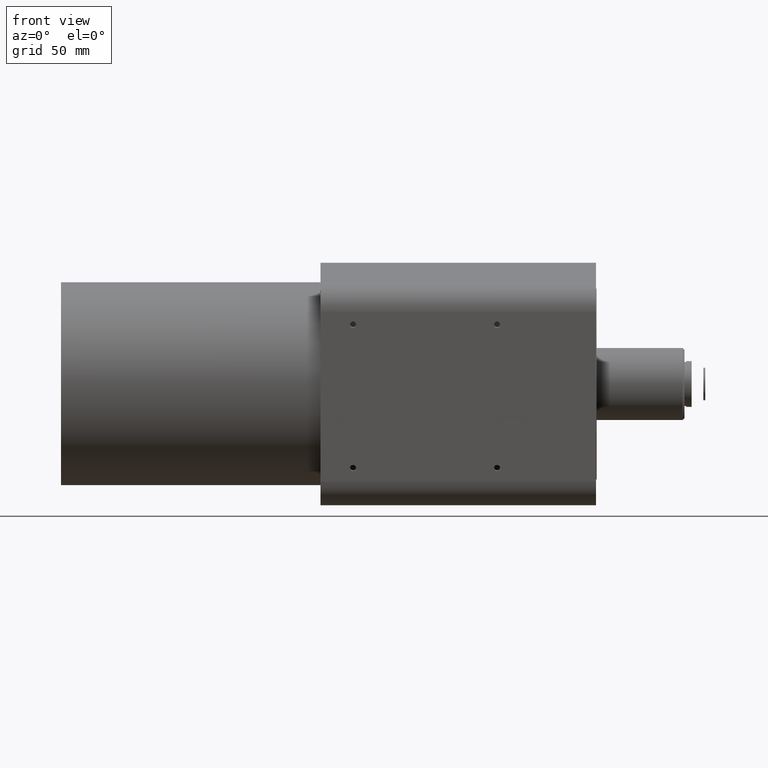
[diagram: clean part render]
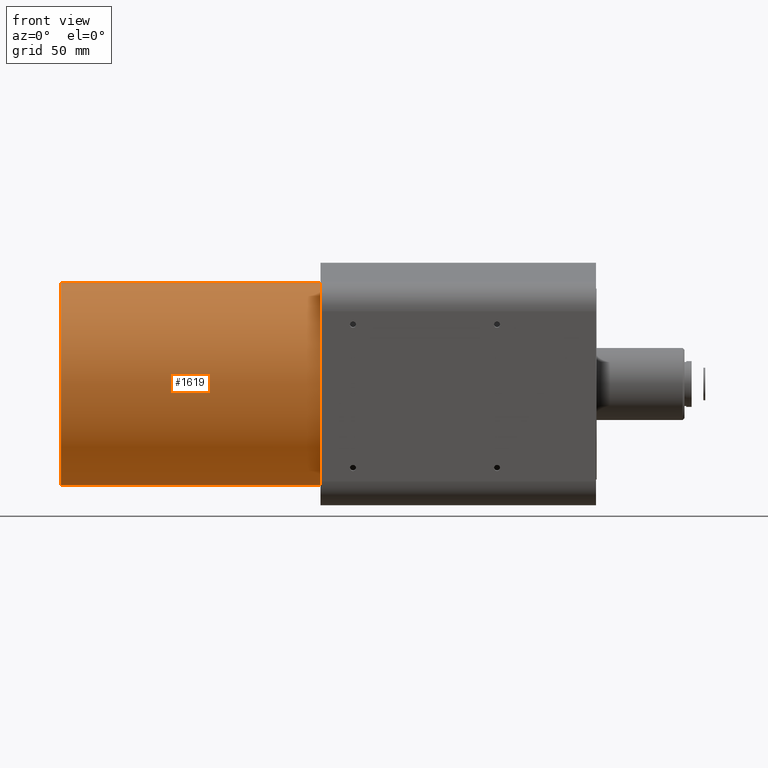
[diagram: same view with one face highlighted and labeled with its STEP entity id]
A machine part, front view. The second image highlights one B-rep face of the part: STEP entity #1619.
In plain terms, the highlighted cylindrical surface (bore or boss wall) has radius 56.5 mm, axis along (-1, 0, -0).
Its self-contained STEP definition (entity closure, byte-faithful):
#57 = CARTESIAN_POINT ( 'NONE',  ( -290.6857082087649928, -2.505699976877714091E-14, -2.340416494503755723E-15 ) ) ;
#1619 = ADVANCED_FACE ( 'NONE', ( #27052, #34538 ), #15468, .T. ) ;
#1970 = CARTESIAN_POINT ( 'NONE',  ( -290.6857082087649928, -0.07326066875891243391, 56.49995250329344287 ) ) ;
#4881 = EDGE_LOOP ( 'NONE', ( #16062 ) ) ;
#5989 = AXIS2_PLACEMENT_3D ( 'NONE', #8235, #22967, #34284 ) ;
#7771 = DIRECTION ( 'NONE',  ( 0.000000000000000000, -0.001296649004582077318, 0.9999991593503261278 ) ) ;
#8235 = CARTESIAN_POINT ( 'NONE',  ( -333.3962952383548100, -2.505699976877714091E-14, -2.340416494503755723E-15 ) ) ;
#10142 = CARTESIAN_POINT ( 'NONE',  ( -140.9357082087656465, -0.07326066875891243391, 56.49995250329344287 ) ) ;
#11976 = CIRCLE ( 'NONE', #12753, 56.50000000000001421 ) ;
#12152 = EDGE_CURVE ( 'NONE', #46637, #46637, #23373, .T. ) ;
#12753 = AXIS2_PLACEMENT_3D ( 'NONE', #40684, #18475, #47680 ) ;
#15468 = CYLINDRICAL_SURFACE ( 'NONE', #5989, 56.50000000000001421 ) ;
#16062 = ORIENTED_EDGE ( 'NONE', *, *, #31718, .T. ) ;
#16412 = EDGE_LOOP ( 'NONE', ( #45114 ) ) ;
#18475 = DIRECTION ( 'NONE',  ( -1.000000000000000000, 0.000000000000000000, -0.000000000000000000 ) ) ;
#22967 = DIRECTION ( 'NONE',  ( -1.000000000000000000, 0.000000000000000000, -0.000000000000000000 ) ) ;
#23373 = CIRCLE ( 'NONE', #27229, 56.50000000000001421 ) ;
#27052 = FACE_OUTER_BOUND ( 'NONE', #4881, .T. ) ;
#27229 = AXIS2_PLACEMENT_3D ( 'NONE', #57, #43780, #7771 ) ;
#28503 = VERTEX_POINT ( 'NONE', #10142 ) ;
#31718 = EDGE_CURVE ( 'NONE', #28503, #28503, #11976, .T. ) ;
#34284 = DIRECTION ( 'NONE',  ( 0.000000000000000000, -0.001296649004582077318, 0.9999991593503261278 ) ) ;
#34538 = FACE_OUTER_BOUND ( 'NONE', #16412, .T. ) ;
#40684 = CARTESIAN_POINT ( 'NONE',  ( -140.9357082087656465, -2.505699976877714091E-14, -2.340416494503755723E-15 ) ) ;
#43780 = DIRECTION ( 'NONE',  ( 1.000000000000000000, -0.000000000000000000, 0.000000000000000000 ) ) ;
#45114 = ORIENTED_EDGE ( 'NONE', *, *, #12152, .T. ) ;
#46637 = VERTEX_POINT ( 'NONE', #1970 ) ;
#47680 = DIRECTION ( 'NONE',  ( 0.000000000000000000, -0.001296649004582077318, 0.9999991593503261278 ) ) ;